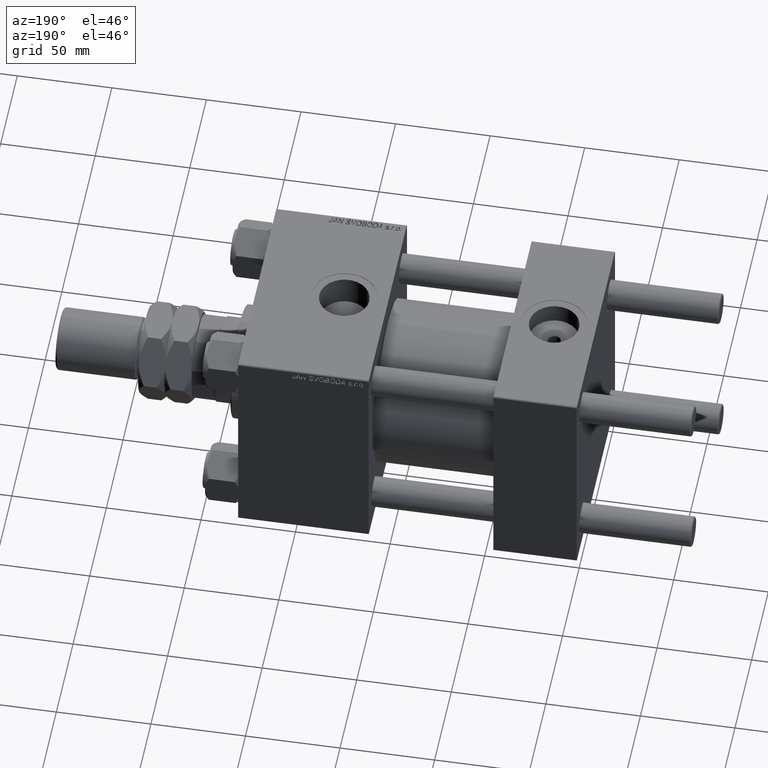
[diagram: clean part render]
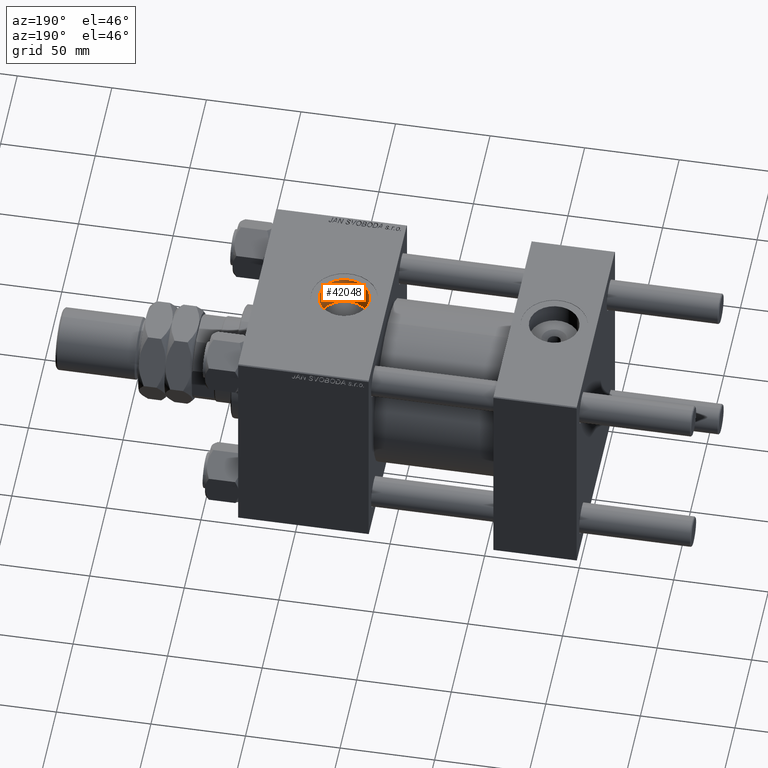
[diagram: same view with one face highlighted and labeled with its STEP entity id]
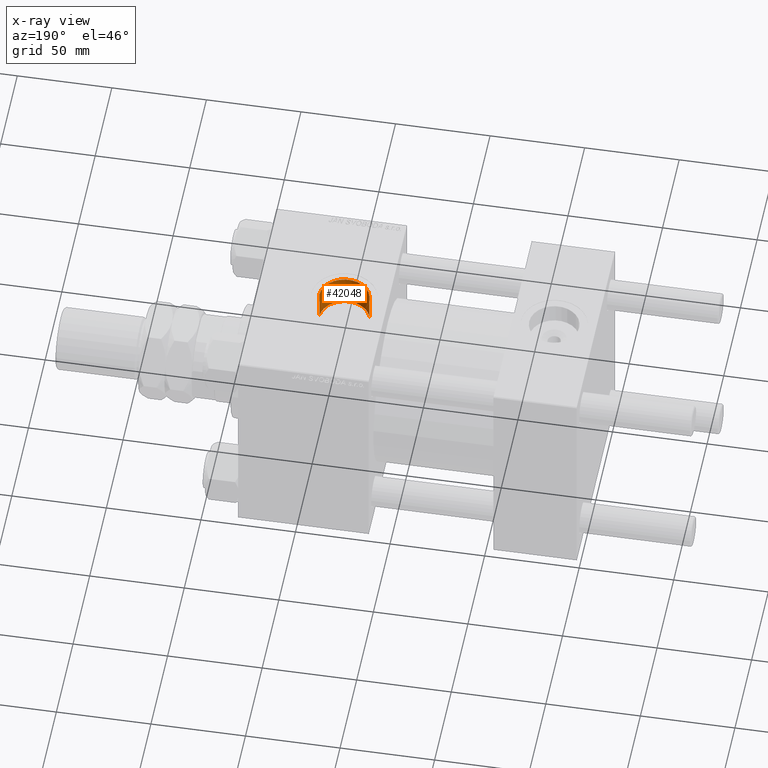
[diagram: x-ray of the same camera — body ghosted, the highlighted face saturated]
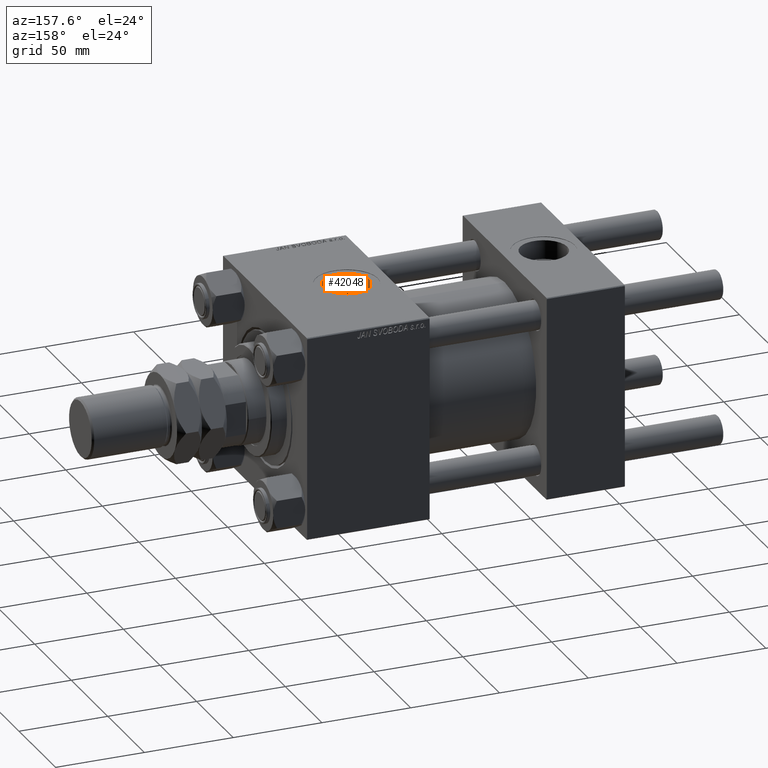
[diagram: same view with one face highlighted and labeled with its STEP entity id]
A machine part, auxiliary view. The second image highlights one B-rep face of the part: STEP entity #42048.
The next image is the same camera in x-ray: the body ghosted, the highlighted face saturated — about 0% of this face is hidden behind the body in this view.
A second angle (auxiliary view) of the same face is appended — the face is thin or edge-on in the first view.
In plain terms, the highlighted cylindrical surface (edge-blend (fillet) strip) has radius 13.22 mm, axis along (0, 0, -1).
Its self-contained STEP definition (entity closure, byte-faithful):
#1491 = EDGE_CURVE ( 'NONE', #15229, #46283, #11850, .T. ) ;
#2939 = CIRCLE ( 'NONE', #8133, 13.22000000000000952 ) ;
#3369 = ORIENTED_EDGE ( 'NONE', *, *, #9420, .T. ) ;
#4373 = DIRECTION ( 'NONE',  ( 1.000000000000000000, 0.000000000000000000, 0.000000000000000000 ) ) ;
#5343 = VERTEX_POINT ( 'NONE', #35506 ) ;
#7137 = CARTESIAN_POINT ( 'NONE',  ( 146.2200000000000273, -5.319910835434427226E-15, 80.30000000000001137 ) ) ;
#8133 = AXIS2_PLACEMENT_3D ( 'NONE', #9884, #50530, #22177 ) ;
#9420 = EDGE_CURVE ( 'NONE', #9568, #5343, #14527, .T. ) ;
#9568 = VERTEX_POINT ( 'NONE', #32809 ) ;
#9884 = CARTESIAN_POINT ( 'NONE',  ( 133.0000000000000000, -6.938893903907229955E-15, 41.09999999999999432 ) ) ;
#11850 = LINE ( 'NONE', #24935, #16809 ) ;
#12856 = ORIENTED_EDGE ( 'NONE', *, *, #27305, .F. ) ;
#14527 = LINE ( 'NONE', #7137, #22390 ) ;
#15229 = VERTEX_POINT ( 'NONE', #31687 ) ;
#16391 = AXIS2_PLACEMENT_3D ( 'NONE', #41860, #33700, #29074 ) ;
#16809 = VECTOR ( 'NONE', #23858, 1000.000000000000000 ) ;
#22177 = DIRECTION ( 'NONE',  ( 1.000000000000000000, 0.000000000000000000, 0.000000000000000000 ) ) ;
#22299 = EDGE_LOOP ( 'NONE', ( #50745, #3369, #12856, #49249 ) ) ;
#22390 = VECTOR ( 'NONE', #35817, 1000.000000000000000 ) ;
#23858 = DIRECTION ( 'NONE',  ( 0.000000000000000000, 0.000000000000000000, -1.000000000000000000 ) ) ;
#24935 = CARTESIAN_POINT ( 'NONE',  ( 119.7800000000000011, -6.938893903907229955E-15, 80.30000000000001137 ) ) ;
#27305 = EDGE_CURVE ( 'NONE', #46283, #5343, #2939, .T. ) ;
#29074 = DIRECTION ( 'NONE',  ( -1.000000000000000000, 0.000000000000000000, 0.000000000000000000 ) ) ;
#30158 = CIRCLE ( 'NONE', #43221, 13.22000000000000952 ) ;
#30285 = CARTESIAN_POINT ( 'NONE',  ( 133.0000000000000000, -6.938893903907229955E-15, 57.30000000000000426 ) ) ;
#31687 = CARTESIAN_POINT ( 'NONE',  ( 119.7800000000000011, -6.938893903907229955E-15, 57.30000000000000426 ) ) ;
#32613 = CARTESIAN_POINT ( 'NONE',  ( 119.7800000000000011, -6.938893903907229955E-15, 41.09999999999999432 ) ) ;
#32809 = CARTESIAN_POINT ( 'NONE',  ( 146.2200000000000273, -5.319910835434427226E-15, 57.30000000000000426 ) ) ;
#33700 = DIRECTION ( 'NONE',  ( 0.000000000000000000, 0.000000000000000000, -1.000000000000000000 ) ) ;
#35506 = CARTESIAN_POINT ( 'NONE',  ( 146.2200000000000273, -5.319910835434427226E-15, 41.09999999999999432 ) ) ;
#35817 = DIRECTION ( 'NONE',  ( 0.000000000000000000, 0.000000000000000000, -1.000000000000000000 ) ) ;
#37546 = EDGE_CURVE ( 'NONE', #9568, #15229, #30158, .T. ) ;
#41860 = CARTESIAN_POINT ( 'NONE',  ( 133.0000000000000000, -6.938893903907229955E-15, 80.30000000000001137 ) ) ;
#42048 = ADVANCED_FACE ( 'NONE', ( #46473 ), #42127, .F. ) ;
#42127 = CYLINDRICAL_SURFACE ( 'NONE', #16391, 13.22000000000000952 ) ;
#43221 = AXIS2_PLACEMENT_3D ( 'NONE', #30285, #46889, #4373 ) ;
#46283 = VERTEX_POINT ( 'NONE', #32613 ) ;
#46473 = FACE_OUTER_BOUND ( 'NONE', #22299, .T. ) ;
#46889 = DIRECTION ( 'NONE',  ( -0.000000000000000000, -0.000000000000000000, -1.000000000000000000 ) ) ;
#49249 = ORIENTED_EDGE ( 'NONE', *, *, #1491, .F. ) ;
#50530 = DIRECTION ( 'NONE',  ( 0.000000000000000000, 0.000000000000000000, 1.000000000000000000 ) ) ;
#50745 = ORIENTED_EDGE ( 'NONE', *, *, #37546, .F. ) ;